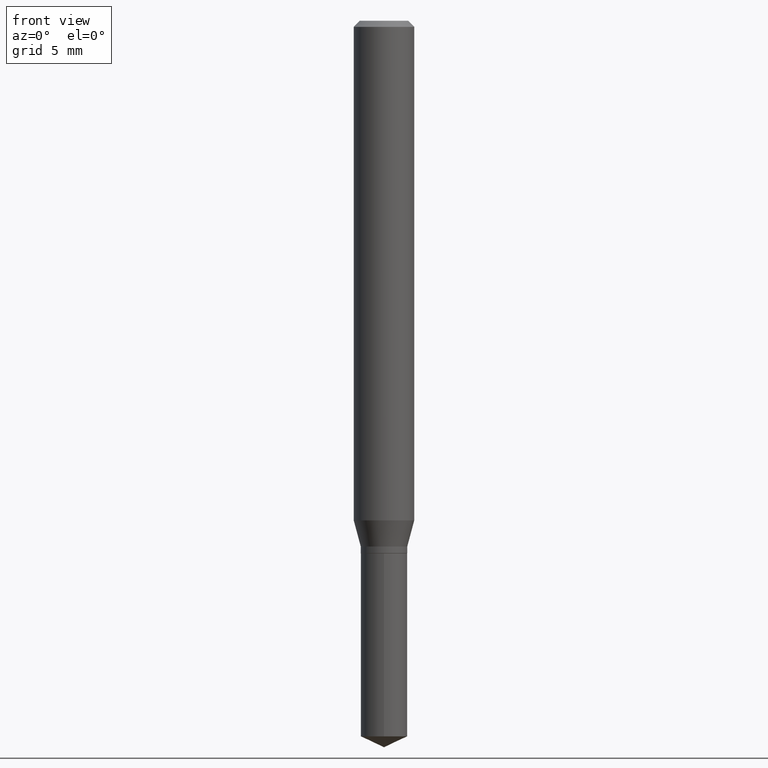
[diagram: clean part render]
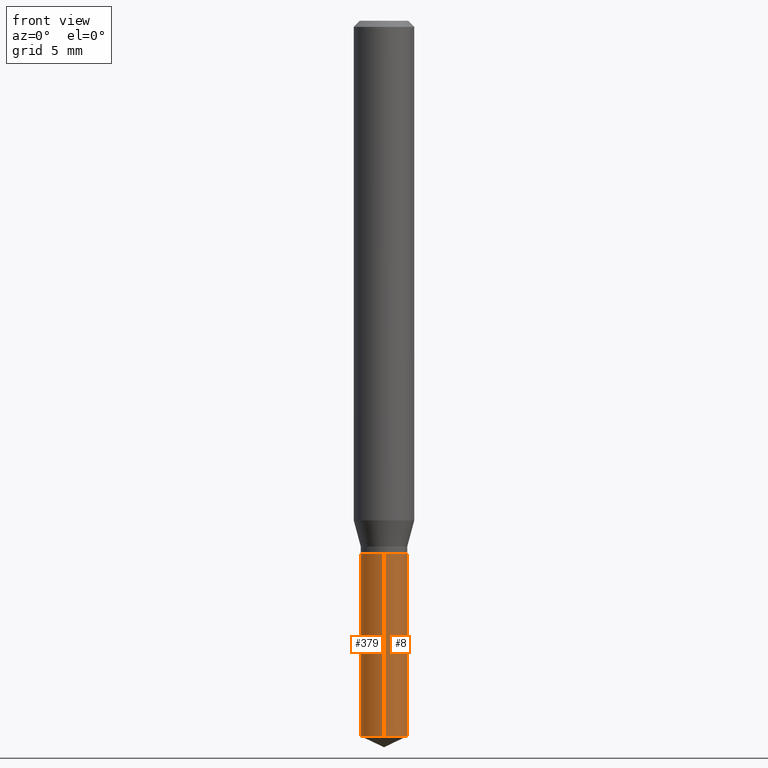
[diagram: same view with one multi-face feature highlighted, each face labeled with its STEP entity id]
A machine part, front view. The highlighted faces form ONE feature: a constant-radius fillet chain: 2 tangent blend faces with common blend radius 1.2192 mm. The faces share edges in the B-rep.
Their STEP definitions:
[1] entity #8 (Cylinder):
#8 = ADVANCED_FACE ( 'NONE', ( #216 ), #410, .T. ) ;
#43 = CIRCLE ( 'NONE', #237, 0.04800000000000000100 ) ;
#57 = VERTEX_POINT ( 'NONE', #490 ) ;
#67 = DIRECTION ( 'NONE',  ( -6.982962677686265922E-15, -1.000000000000000000, 2.845674993400273939E-15 ) ) ;
#80 = VECTOR ( 'NONE', #181, 39.37007874015748143 ) ;
#92 = ORIENTED_EDGE ( 'NONE', *, *, #342, .T. ) ;
#95 = EDGE_CURVE ( 'NONE', #57, #352, #340, .T. ) ;
#129 = AXIS2_PLACEMENT_3D ( 'NONE', #297, #455, #420 ) ;
#136 = DIRECTION ( 'NONE',  ( -2.445399690415121810E-29, 3.491580316559632610E-15, 1.000000000000000000 ) ) ;
#148 = CARTESIAN_POINT ( 'NONE',  ( -3.351822085289138941E-16, -0.04800000000000383821, -1.099999999999999867 ) ) ;
#167 = ORIENTED_EDGE ( 'NONE', *, *, #95, .F. ) ;
#171 = VERTEX_POINT ( 'NONE', #409 ) ;
#177 = LINE ( 'NONE', #318, #356 ) ;
#179 = EDGE_CURVE ( 'NONE', #352, #171, #43, .T. ) ;
#180 = VERTEX_POINT ( 'NONE', #274 ) ;
#181 = DIRECTION ( 'NONE',  ( -2.445399690415121810E-29, 3.491580316559632610E-15, 1.000000000000000000 ) ) ;
#216 = FACE_OUTER_BOUND ( 'NONE', #397, .T. ) ;
#218 = CARTESIAN_POINT ( 'NONE',  ( 2.690015686803650369E-29, -3.840629472727460101E-15, -1.100000000000000089 ) ) ;
#237 = AXIS2_PLACEMENT_3D ( 'NONE', #218, #368, #358 ) ;
#274 = CARTESIAN_POINT ( 'NONE',  ( 3.410605131648841867E-16, 0.04799999999999484540, -1.477617232408560799 ) ) ;
#284 = CARTESIAN_POINT ( 'NONE',  ( 2.690015686803650369E-29, -3.840629472727460101E-15, -1.100000000000000089 ) ) ;
#297 = CARTESIAN_POINT ( 'NONE',  ( 3.613440750030958886E-29, -5.159110368598914660E-15, -1.477617232408560355 ) ) ;
#302 = CARTESIAN_POINT ( 'NONE',  ( -3.351822085289138941E-16, -0.04800000000000383821, -1.099999999999999867 ) ) ;
#315 = ORIENTED_EDGE ( 'NONE', *, *, #480, .T. ) ;
#318 = CARTESIAN_POINT ( 'NONE',  ( 3.410605131648748683E-16, 0.04799999999999615685, -1.100000000000000089 ) ) ;
#340 = LINE ( 'NONE', #148, #80 ) ;
#342 = EDGE_CURVE ( 'NONE', #57, #180, #417, .T. ) ;
#350 = AXIS2_PLACEMENT_3D ( 'NONE', #284, #437, #67 ) ;
#352 = VERTEX_POINT ( 'NONE', #302 ) ;
#356 = VECTOR ( 'NONE', #136, 39.37007874015748143 ) ;
#358 = DIRECTION ( 'NONE',  ( -6.982962677686265922E-15, -1.000000000000000000, 2.845674993400273939E-15 ) ) ;
#368 = DIRECTION ( 'NONE',  ( -2.445399690415121530E-29, 3.491580316559632610E-15, 1.000000000000000000 ) ) ;
#397 = EDGE_LOOP ( 'NONE', ( #92, #315, #402, #167 ) ) ;
#402 = ORIENTED_EDGE ( 'NONE', *, *, #179, .F. ) ;
#409 = CARTESIAN_POINT ( 'NONE',  ( 3.410605131648842360E-16, 0.04799999999999615685, -1.100000000000000089 ) ) ;
#410 = CYLINDRICAL_SURFACE ( 'NONE', #350, 0.04800000000000000100 ) ;
#417 = CIRCLE ( 'NONE', #129, 0.04800000000000000100 ) ;
#420 = DIRECTION ( 'NONE',  ( -6.982962677686265922E-15, -1.000000000000000000, 5.691349986800547879E-15 ) ) ;
#437 = DIRECTION ( 'NONE',  ( -2.445399690415121530E-29, 3.491580316559632610E-15, 1.000000000000000000 ) ) ;
#455 = DIRECTION ( 'NONE',  ( -2.445399690415121530E-29, 3.491580316559632610E-15, 1.000000000000000000 ) ) ;
#480 = EDGE_CURVE ( 'NONE', #180, #171, #177, .T. ) ;
#490 = CARTESIAN_POINT ( 'NONE',  ( -3.351822085289046249E-16, -0.04800000000000515660, -1.477617232408560133 ) ) ;
[2] entity #379 (Cylinder):
#12 = DIRECTION ( 'NONE',  ( -2.445399690415121530E-29, 3.491580316559632610E-15, 1.000000000000000000 ) ) ;
#29 = DIRECTION ( 'NONE',  ( -2.445399690415121530E-29, 3.491580316559632610E-15, 1.000000000000000000 ) ) ;
#42 = CIRCLE ( 'NONE', #219, 0.04800000000000000100 ) ;
#44 = EDGE_LOOP ( 'NONE', ( #157, #278, #441, #96 ) ) ;
#46 = CYLINDRICAL_SURFACE ( 'NONE', #117, 0.04800000000000000100 ) ;
#57 = VERTEX_POINT ( 'NONE', #490 ) ;
#80 = VECTOR ( 'NONE', #181, 39.37007874015748143 ) ;
#95 = EDGE_CURVE ( 'NONE', #57, #352, #340, .T. ) ;
#96 = ORIENTED_EDGE ( 'NONE', *, *, #489, .F. ) ;
#117 = AXIS2_PLACEMENT_3D ( 'NONE', #201, #12, #162 ) ;
#136 = DIRECTION ( 'NONE',  ( -2.445399690415121810E-29, 3.491580316559632610E-15, 1.000000000000000000 ) ) ;
#148 = CARTESIAN_POINT ( 'NONE',  ( -3.351822085289138941E-16, -0.04800000000000383821, -1.099999999999999867 ) ) ;
#157 = ORIENTED_EDGE ( 'NONE', *, *, #480, .F. ) ;
#162 = DIRECTION ( 'NONE',  ( -6.982962677686265922E-15, -1.000000000000000000, 2.845674993400273939E-15 ) ) ;
#171 = VERTEX_POINT ( 'NONE', #409 ) ;
#177 = LINE ( 'NONE', #318, #356 ) ;
#180 = VERTEX_POINT ( 'NONE', #274 ) ;
#181 = DIRECTION ( 'NONE',  ( -2.445399690415121810E-29, 3.491580316559632610E-15, 1.000000000000000000 ) ) ;
#201 = CARTESIAN_POINT ( 'NONE',  ( 2.690015686803650369E-29, -3.840629472727460101E-15, -1.100000000000000089 ) ) ;
#207 = DIRECTION ( 'NONE',  ( -6.982962677686265922E-15, -1.000000000000000000, 5.691349986800547879E-15 ) ) ;
#219 = AXIS2_PLACEMENT_3D ( 'NONE', #285, #361, #248 ) ;
#238 = FACE_OUTER_BOUND ( 'NONE', #44, .T. ) ;
#248 = DIRECTION ( 'NONE',  ( -6.982962677686265922E-15, -1.000000000000000000, 2.845674993400273939E-15 ) ) ;
#266 = EDGE_CURVE ( 'NONE', #180, #57, #448, .T. ) ;
#274 = CARTESIAN_POINT ( 'NONE',  ( 3.410605131648841867E-16, 0.04799999999999484540, -1.477617232408560799 ) ) ;
#278 = ORIENTED_EDGE ( 'NONE', *, *, #266, .T. ) ;
#285 = CARTESIAN_POINT ( 'NONE',  ( 2.690015686803650369E-29, -3.840629472727460101E-15, -1.100000000000000089 ) ) ;
#292 = AXIS2_PLACEMENT_3D ( 'NONE', #466, #29, #207 ) ;
#302 = CARTESIAN_POINT ( 'NONE',  ( -3.351822085289138941E-16, -0.04800000000000383821, -1.099999999999999867 ) ) ;
#318 = CARTESIAN_POINT ( 'NONE',  ( 3.410605131648748683E-16, 0.04799999999999615685, -1.100000000000000089 ) ) ;
#340 = LINE ( 'NONE', #148, #80 ) ;
#352 = VERTEX_POINT ( 'NONE', #302 ) ;
#356 = VECTOR ( 'NONE', #136, 39.37007874015748143 ) ;
#361 = DIRECTION ( 'NONE',  ( -2.445399690415121530E-29, 3.491580316559632610E-15, 1.000000000000000000 ) ) ;
#379 = ADVANCED_FACE ( 'NONE', ( #238 ), #46, .T. ) ;
#409 = CARTESIAN_POINT ( 'NONE',  ( 3.410605131648842360E-16, 0.04799999999999615685, -1.100000000000000089 ) ) ;
#441 = ORIENTED_EDGE ( 'NONE', *, *, #95, .T. ) ;
#448 = CIRCLE ( 'NONE', #292, 0.04800000000000000100 ) ;
#466 = CARTESIAN_POINT ( 'NONE',  ( 3.613440750030958886E-29, -5.159110368598914660E-15, -1.477617232408560355 ) ) ;
#480 = EDGE_CURVE ( 'NONE', #180, #171, #177, .T. ) ;
#489 = EDGE_CURVE ( 'NONE', #171, #352, #42, .T. ) ;
#490 = CARTESIAN_POINT ( 'NONE',  ( -3.351822085289046249E-16, -0.04800000000000515660, -1.477617232408560133 ) ) ;